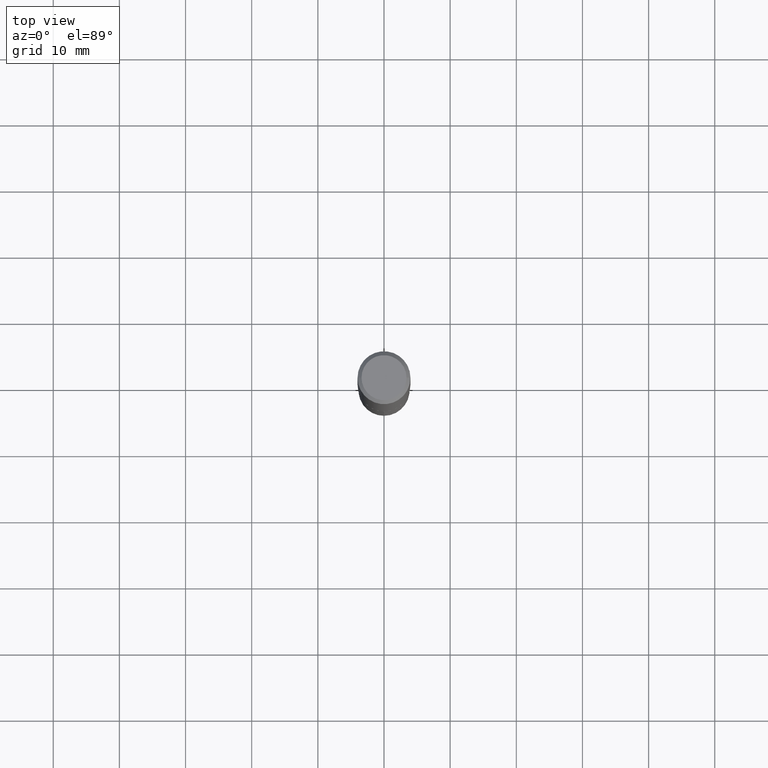
[diagram: clean part render]
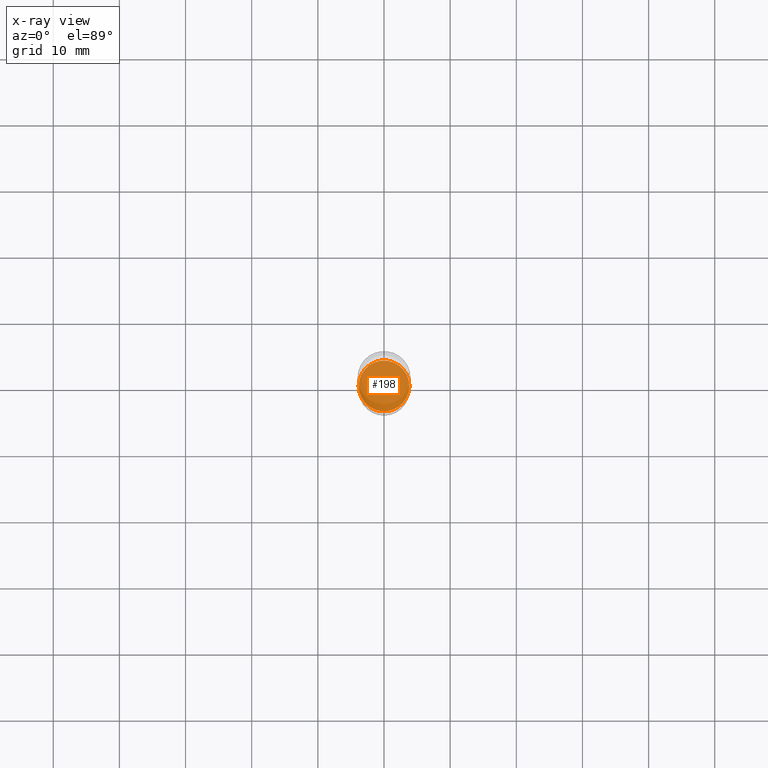
[diagram: x-ray — body ghosted, one internal face saturated and labeled with its STEP entity id]
A machine part, top view, then the same camera in x-ray: the body is ghosted and one INTERNAL B-rep face — a face not visible from any outside direction — is saturated and labeled: STEP entity #198.
In plain terms, the highlighted planar face has unit normal (-0, 0, 1).
Its self-contained STEP definition (entity closure, byte-faithful):
#1 = VERTEX_POINT ( 'NONE', #284 ) ;
#27 = ORIENTED_EDGE ( 'NONE', *, *, #78, .F. ) ;
#78 = EDGE_CURVE ( 'NONE', #437, #1, #324, .T. ) ;
#111 = DIRECTION ( 'NONE',  ( -2.445468806185136597E-29, 3.491481338843145583E-15, 1.000000000000000000 ) ) ;
#126 = CARTESIAN_POINT ( 'NONE',  ( 7.005534489078564301E-29, -1.000204659138396408E-14, -2.864700000000001356 ) ) ;
#142 = EDGE_LOOP ( 'NONE', ( #27, #260 ) ) ;
#153 = FACE_OUTER_BOUND ( 'NONE', #142, .T. ) ;
#185 = CIRCLE ( 'NONE', #262, 0.1510499999999999898 ) ;
#195 = DIRECTION ( 'NONE',  ( 1.000000000000000000, -6.982962677686270655E-15, 0.000000000000000000 ) ) ;
#198 = ADVANCED_FACE ( 'NONE', ( #153 ), #298, .F. ) ;
#207 = DIRECTION ( 'NONE',  ( 1.000000000000000000, -6.982962677686270655E-15, 0.000000000000000000 ) ) ;
#237 = EDGE_CURVE ( 'NONE', #1, #437, #185, .T. ) ;
#260 = ORIENTED_EDGE ( 'NONE', *, *, #237, .F. ) ;
#262 = AXIS2_PLACEMENT_3D ( 'NONE', #279, #111, #207 ) ;
#279 = CARTESIAN_POINT ( 'NONE',  ( 7.005534489078564301E-29, -1.000204659138396408E-14, -2.864700000000001356 ) ) ;
#284 = CARTESIAN_POINT ( 'NONE',  ( -0.1510499999999999898, -8.926122561844219843E-15, -2.864700000000001356 ) ) ;
#293 = CARTESIAN_POINT ( 'NONE',  ( 0.1510499999999999898, -1.105682310384847519E-14, -2.864700000000001356 ) ) ;
#298 = PLANE ( 'NONE',  #397 ) ;
#324 = CIRCLE ( 'NONE', #465, 0.1510499999999999898 ) ;
#341 = CARTESIAN_POINT ( 'NONE',  ( -2.302340413970851974E-30, -2.036407896139391284E-14, -2.864700000000000912 ) ) ;
#344 = DIRECTION ( 'NONE',  ( -2.445468806185136597E-29, 3.491481338843145583E-15, 1.000000000000000000 ) ) ;
#397 = AXIS2_PLACEMENT_3D ( 'NONE', #341, #411, #450 ) ;
#411 = DIRECTION ( 'NONE',  ( -2.438088387897960049E-29, 3.491481338843145188E-15, 1.000000000000000000 ) ) ;
#437 = VERTEX_POINT ( 'NONE', #293 ) ;
#450 = DIRECTION ( 'NONE',  ( 1.000000000000000000, -6.982962677686265922E-15, 4.876176775795935793E-29 ) ) ;
#465 = AXIS2_PLACEMENT_3D ( 'NONE', #126, #344, #195 ) ;